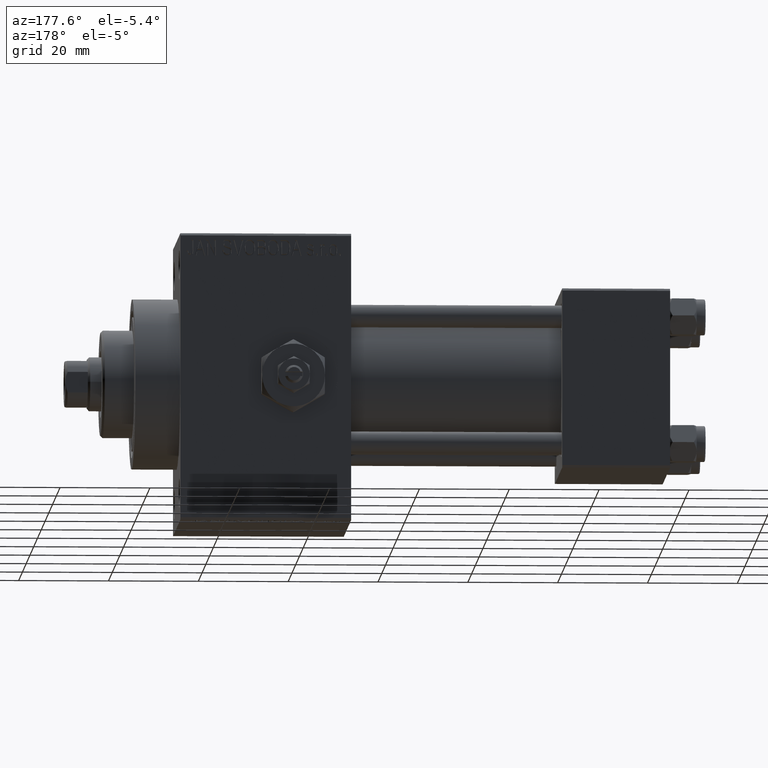
[diagram: clean part render]
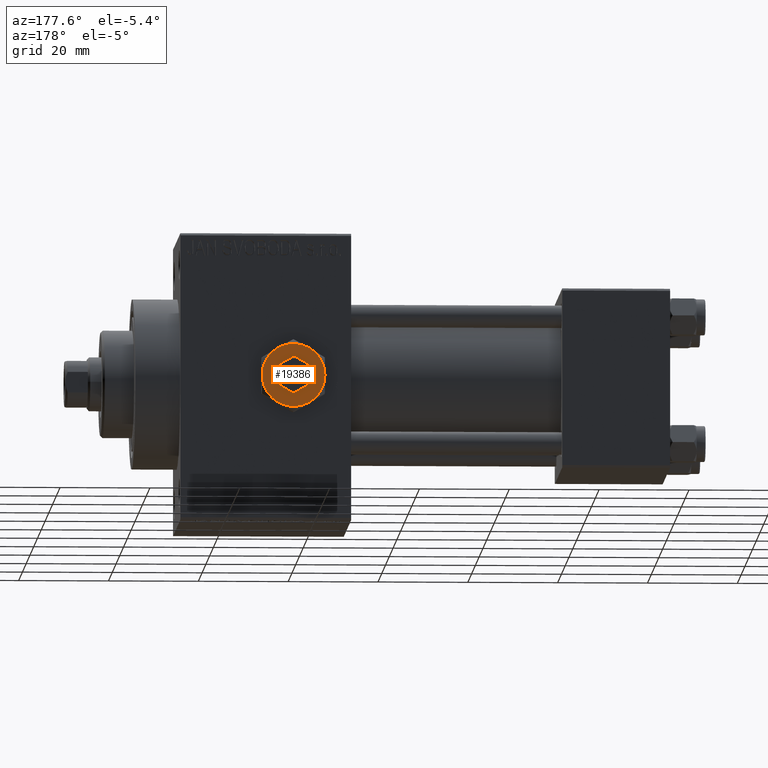
[diagram: same view with one face highlighted and labeled with its STEP entity id]
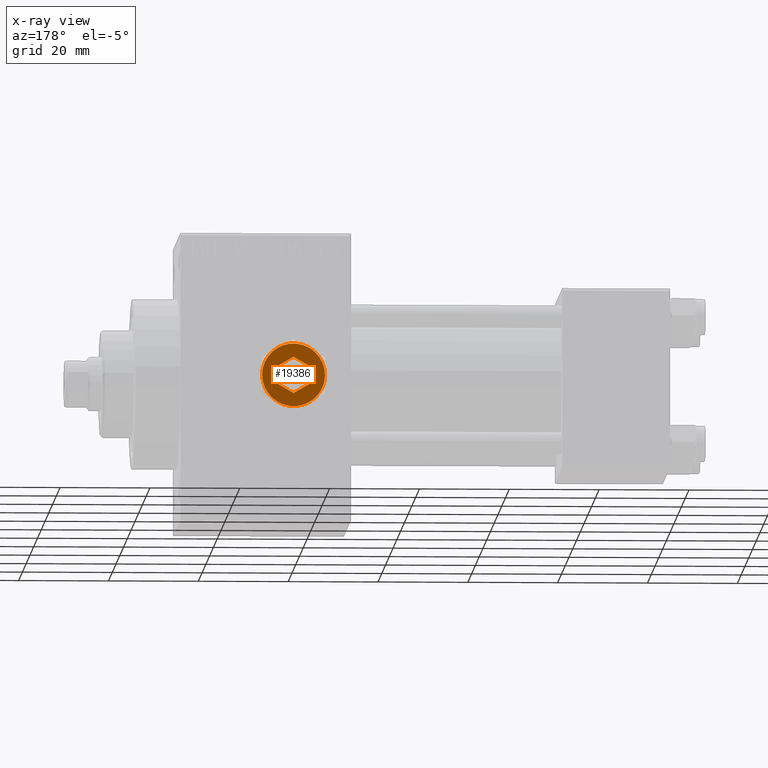
[diagram: x-ray of the same camera — body ghosted, the highlighted face saturated]
A machine part, auxiliary view. The second image highlights one B-rep face of the part: STEP entity #19386.
The next image is the same camera in x-ray: the body ghosted, the highlighted face saturated — about 0% of this face is hidden behind the body in this view.
In plain terms, the highlighted planar face has unit normal (0, 1, 0).
Its self-contained STEP definition (entity closure, byte-faithful):
#291 = CARTESIAN_POINT ( 'NONE',  ( 3.500000000000000444, 6.062177826491073063, 4.299999999999999822 ) ) ;
#830 = DIRECTION ( 'NONE',  ( 1.000000000000000000, 0.000000000000000000, 0.000000000000000000 ) ) ;
#975 = ORIENTED_EDGE ( 'NONE', *, *, #33645, .F. ) ;
#1042 = EDGE_CURVE ( 'NONE', #7971, #9455, #43393, .T. ) ;
#1154 = VERTEX_POINT ( 'NONE', #291 ) ;
#3043 = FACE_OUTER_BOUND ( 'NONE', #25764, .T. ) ;
#3088 = AXIS2_PLACEMENT_3D ( 'NONE', #31428, #42811, #19553 ) ;
#3428 = VERTEX_POINT ( 'NONE', #38154 ) ;
#3578 = CARTESIAN_POINT ( 'NONE',  ( 3.500000000000000000, -2.020725942163690281, 4.299999999999999822 ) ) ;
#3935 = VECTOR ( 'NONE', #28539, 1000.000000000000000 ) ;
#4175 = ORIENTED_EDGE ( 'NONE', *, *, #48202, .T. ) ;
#4655 = CARTESIAN_POINT ( 'NONE',  ( 3.500000000000000888, -6.062177826491073951, 4.299999999999999822 ) ) ;
#4657 = LINE ( 'NONE', #11847, #48892 ) ;
#5101 = CARTESIAN_POINT ( 'NONE',  ( 0.000000000000000000, 0.000000000000000000, 4.299999999999999822 ) ) ;
#6503 = CARTESIAN_POINT ( 'NONE',  ( -7.000000000000001776, -2.253471898105739040E-15, 4.299999999999999822 ) ) ;
#7957 = EDGE_CURVE ( 'NONE', #39321, #7971, #12666, .T. ) ;
#7971 = VERTEX_POINT ( 'NONE', #18331 ) ;
#8026 = ORIENTED_EDGE ( 'NONE', *, *, #26231, .T. ) ;
#8371 = CARTESIAN_POINT ( 'NONE',  ( -2.443687887572056883E-16, -4.041451884327378785, 4.299999999999999822 ) ) ;
#9455 = VERTEX_POINT ( 'NONE', #26979 ) ;
#9466 = CARTESIAN_POINT ( 'NONE',  ( -3.499999999999998668, -2.020725942163689837, 4.299999999999999822 ) ) ;
#9981 = EDGE_LOOP ( 'NONE', ( #38891, #18404, #975, #40156, #31810, #12636 ) ) ;
#10234 = EDGE_CURVE ( 'NONE', #30120, #3428, #13504, .T. ) ;
#11588 = VERTEX_POINT ( 'NONE', #3578 ) ;
#11721 = VERTEX_POINT ( 'NONE', #28820 ) ;
#11808 = CARTESIAN_POINT ( 'NONE',  ( 3.499999999999998224, 2.020725942163691613, 4.299999999999999822 ) ) ;
#11847 = CARTESIAN_POINT ( 'NONE',  ( 3.499999999999998224, 2.020725942163691613, 4.299999999999999822 ) ) ;
#12636 = ORIENTED_EDGE ( 'NONE', *, *, #7957, .F. ) ;
#12666 = LINE ( 'NONE', #47320, #3935 ) ;
#13146 = CARTESIAN_POINT ( 'NONE',  ( 0.000000000000000000, 0.000000000000000000, 4.299999999999999822 ) ) ;
#13504 = CIRCLE ( 'NONE', #35636, 7.000000000000001776 ) ;
#14151 = VECTOR ( 'NONE', #34620, 1000.000000000000114 ) ;
#14192 = CARTESIAN_POINT ( 'NONE',  ( 0.000000000000000000, 0.000000000000000000, 4.299999999999999822 ) ) ;
#14933 = DIRECTION ( 'NONE',  ( -3.219245568722483357E-16, 1.000000000000000000, 0.000000000000000000 ) ) ;
#15059 = LINE ( 'NONE', #8371, #14151 ) ;
#15264 = DIRECTION ( 'NONE',  ( 1.000000000000000000, 0.000000000000000000, 0.000000000000000000 ) ) ;
#15320 = VERTEX_POINT ( 'NONE', #6503 ) ;
#15556 = EDGE_CURVE ( 'NONE', #1154, #23629, #41366, .T. ) ;
#15766 = DIRECTION ( 'NONE',  ( 0.000000000000000000, 0.000000000000000000, 1.000000000000000000 ) ) ;
#17107 = DIRECTION ( 'NONE',  ( 1.000000000000000000, 0.000000000000000000, 0.000000000000000000 ) ) ;
#18331 = CARTESIAN_POINT ( 'NONE',  ( -3.499999999999998668, -2.020725942163689837, 4.299999999999999822 ) ) ;
#18404 = ORIENTED_EDGE ( 'NONE', *, *, #45244, .F. ) ;
#18598 = ORIENTED_EDGE ( 'NONE', *, *, #15556, .T. ) ;
#19386 = ADVANCED_FACE ( 'NONE', ( #3043, #32776 ), #48099, .T. ) ;
#19553 = DIRECTION ( 'NONE',  ( 1.000000000000000000, 0.000000000000000000, 0.000000000000000000 ) ) ;
#20206 = CIRCLE ( 'NONE', #29690, 7.000000000000001776 ) ;
#20856 = DIRECTION ( 'NONE',  ( 0.8660254037844385966, -0.4999999999999998890, 0.000000000000000000 ) ) ;
#22827 = VERTEX_POINT ( 'NONE', #11808 ) ;
#23435 = VERTEX_POINT ( 'NONE', #27553 ) ;
#23629 = VERTEX_POINT ( 'NONE', #46585 ) ;
#23773 = VECTOR ( 'NONE', #20856, 1000.000000000000227 ) ;
#24463 = CIRCLE ( 'NONE', #3088, 7.000000000000001776 ) ;
#24650 = EDGE_CURVE ( 'NONE', #23629, #15320, #20206, .T. ) ;
#25764 = EDGE_LOOP ( 'NONE', ( #42659, #8026, #18598, #44756, #36697, #4175 ) ) ;
#26179 = CARTESIAN_POINT ( 'NONE',  ( 0.000000000000000000, 0.000000000000000000, 4.299999999999999822 ) ) ;
#26231 = EDGE_CURVE ( 'NONE', #3428, #1154, #43976, .T. ) ;
#26979 = CARTESIAN_POINT ( 'NONE',  ( -2.443687887572056883E-16, -4.041451884327378785, 4.299999999999999822 ) ) ;
#26991 = DIRECTION ( 'NONE',  ( -0.8660254037844387076, 0.4999999999999998335, 0.000000000000000000 ) ) ;
#27083 = EDGE_CURVE ( 'NONE', #11721, #39321, #44429, .T. ) ;
#27352 = CARTESIAN_POINT ( 'NONE',  ( 0.000000000000000000, 0.000000000000000000, 4.299999999999999822 ) ) ;
#27553 = CARTESIAN_POINT ( 'NONE',  ( -3.500000000000000000, -6.062177826491073063, 4.299999999999999822 ) ) ;
#27832 = DIRECTION ( 'NONE',  ( 0.000000000000000000, 0.000000000000000000, 1.000000000000000000 ) ) ;
#28085 = VECTOR ( 'NONE', #14933, 1000.000000000000000 ) ;
#28539 = DIRECTION ( 'NONE',  ( 1.073081856240828196E-16, -1.000000000000000000, 0.000000000000000000 ) ) ;
#28820 = CARTESIAN_POINT ( 'NONE',  ( 0.000000000000000000, 4.041451884327380562, 4.299999999999999822 ) ) ;
#29314 = DIRECTION ( 'NONE',  ( 0.000000000000000000, 0.000000000000000000, 1.000000000000000000 ) ) ;
#29485 = AXIS2_PLACEMENT_3D ( 'NONE', #13146, #35688, #17107 ) ;
#29690 = AXIS2_PLACEMENT_3D ( 'NONE', #27352, #27832, #830 ) ;
#30120 = VERTEX_POINT ( 'NONE', #4655 ) ;
#30526 = AXIS2_PLACEMENT_3D ( 'NONE', #5101, #36049, #35316 ) ;
#30640 = CARTESIAN_POINT ( 'NONE',  ( 0.000000000000000000, 0.000000000000000000, 4.299999999999999822 ) ) ;
#30789 = CIRCLE ( 'NONE', #32371, 7.000000000000001776 ) ;
#31428 = CARTESIAN_POINT ( 'NONE',  ( 0.000000000000000000, 0.000000000000000000, 4.299999999999999822 ) ) ;
#31810 = ORIENTED_EDGE ( 'NONE', *, *, #1042, .F. ) ;
#32371 = AXIS2_PLACEMENT_3D ( 'NONE', #30640, #15766, #45736 ) ;
#32776 = FACE_BOUND ( 'NONE', #9981, .T. ) ;
#33645 = EDGE_CURVE ( 'NONE', #11588, #22827, #33757, .T. ) ;
#33757 = LINE ( 'NONE', #48839, #28085 ) ;
#34620 = DIRECTION ( 'NONE',  ( 0.8660254037844388186, 0.4999999999999996669, 0.000000000000000000 ) ) ;
#35132 = CARTESIAN_POINT ( 'NONE',  ( -3.499999999999999112, 2.020725942163690725, 4.299999999999999822 ) ) ;
#35316 = DIRECTION ( 'NONE',  ( 1.000000000000000000, 0.000000000000000000, 0.000000000000000000 ) ) ;
#35636 = AXIS2_PLACEMENT_3D ( 'NONE', #26179, #41519, #15264 ) ;
#35688 = DIRECTION ( 'NONE',  ( 0.000000000000000000, 0.000000000000000000, 1.000000000000000000 ) ) ;
#36049 = DIRECTION ( 'NONE',  ( 0.000000000000000000, 0.000000000000000000, 1.000000000000000000 ) ) ;
#36275 = CARTESIAN_POINT ( 'NONE',  ( 0.000000000000000000, 4.041451884327380562, 4.299999999999999822 ) ) ;
#36697 = ORIENTED_EDGE ( 'NONE', *, *, #47616, .T. ) ;
#38154 = CARTESIAN_POINT ( 'NONE',  ( 6.999999999999994671, 3.004629197474313724E-15, 4.299999999999999822 ) ) ;
#38891 = ORIENTED_EDGE ( 'NONE', *, *, #27083, .F. ) ;
#39266 = VECTOR ( 'NONE', #43708, 1000.000000000000227 ) ;
#39321 = VERTEX_POINT ( 'NONE', #35132 ) ;
#40156 = ORIENTED_EDGE ( 'NONE', *, *, #43107, .F. ) ;
#40690 = DIRECTION ( 'NONE',  ( 1.000000000000000000, 0.000000000000000000, -0.000000000000000000 ) ) ;
#41366 = CIRCLE ( 'NONE', #29485, 7.000000000000001776 ) ;
#41519 = DIRECTION ( 'NONE',  ( 0.000000000000000000, 0.000000000000000000, 1.000000000000000000 ) ) ;
#42659 = ORIENTED_EDGE ( 'NONE', *, *, #10234, .T. ) ;
#42811 = DIRECTION ( 'NONE',  ( 0.000000000000000000, 0.000000000000000000, 1.000000000000000000 ) ) ;
#43107 = EDGE_CURVE ( 'NONE', #9455, #11588, #15059, .T. ) ;
#43393 = LINE ( 'NONE', #9466, #23773 ) ;
#43708 = DIRECTION ( 'NONE',  ( -0.8660254037844385966, -0.4999999999999998890, 0.000000000000000000 ) ) ;
#43757 = AXIS2_PLACEMENT_3D ( 'NONE', #14192, #29314, #40690 ) ;
#43976 = CIRCLE ( 'NONE', #30526, 7.000000000000001776 ) ;
#44429 = LINE ( 'NONE', #36275, #39266 ) ;
#44756 = ORIENTED_EDGE ( 'NONE', *, *, #24650, .T. ) ;
#45244 = EDGE_CURVE ( 'NONE', #22827, #11721, #4657, .T. ) ;
#45736 = DIRECTION ( 'NONE',  ( 1.000000000000000000, 0.000000000000000000, 0.000000000000000000 ) ) ;
#46585 = CARTESIAN_POINT ( 'NONE',  ( -3.500000000000000888, 6.062177826491073063, 4.299999999999999822 ) ) ;
#47320 = CARTESIAN_POINT ( 'NONE',  ( -3.499999999999999112, 2.020725942163690725, 4.299999999999999822 ) ) ;
#47616 = EDGE_CURVE ( 'NONE', #15320, #23435, #30789, .T. ) ;
#48099 = PLANE ( 'NONE',  #43757 ) ;
#48202 = EDGE_CURVE ( 'NONE', #23435, #30120, #24463, .T. ) ;
#48839 = CARTESIAN_POINT ( 'NONE',  ( 3.499999999999999556, -2.020725942163690281, 4.299999999999999822 ) ) ;
#48892 = VECTOR ( 'NONE', #26991, 1000.000000000000114 ) ;